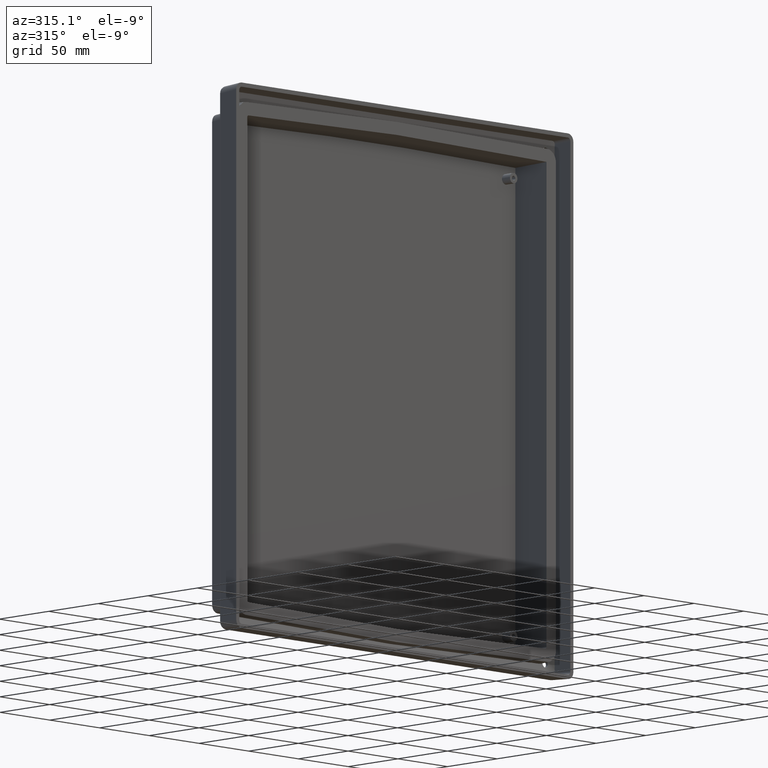
[diagram: clean part render]
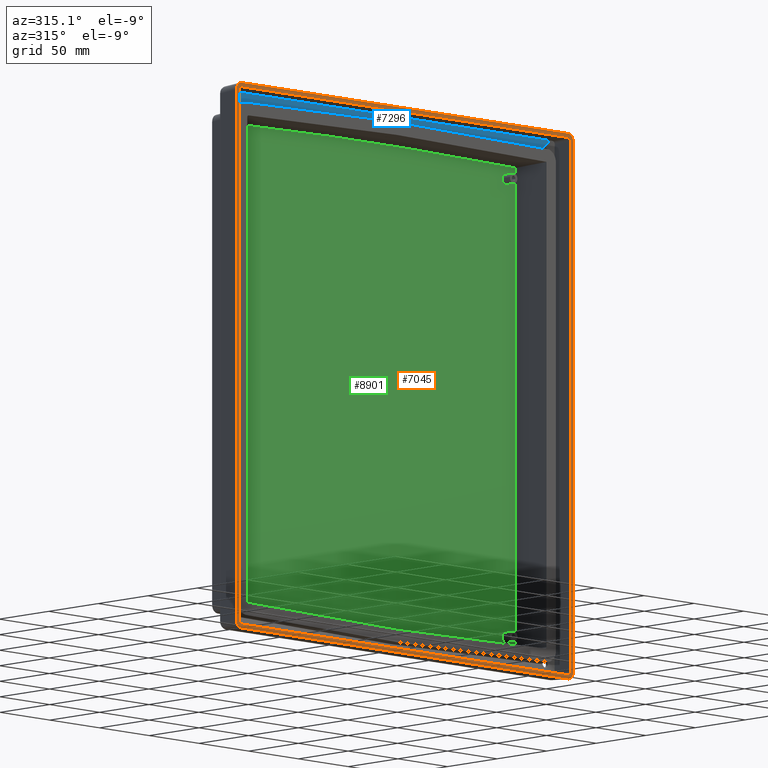
[diagram: same view with three faces highlighted in distinct colors, each labeled with its STEP entity id]
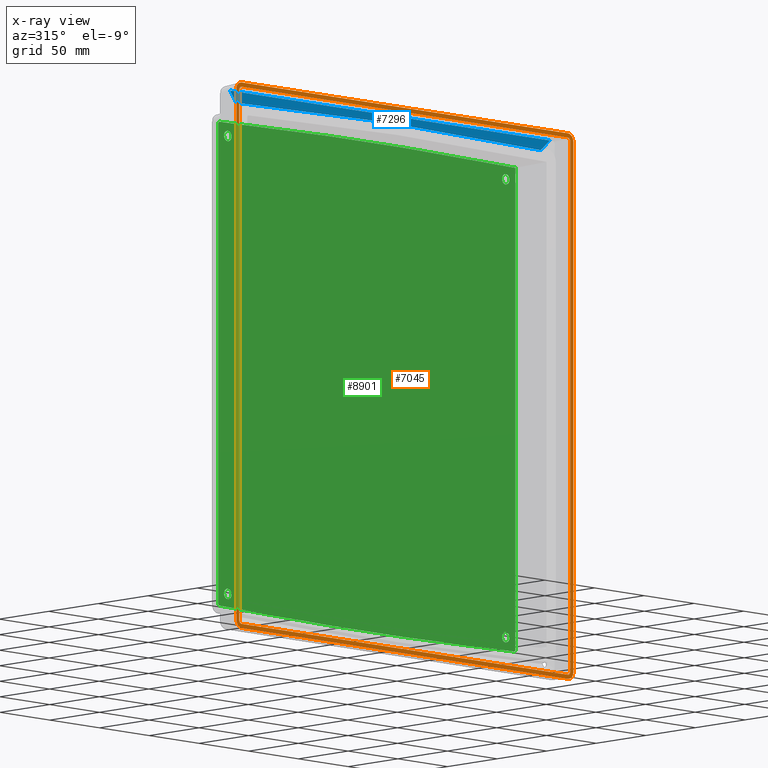
[diagram: x-ray of the same camera — body ghosted, the three highlighted faces saturated]
A machine part, auxiliary view with three faces highlighted in distinct colors.
The next image is the same camera in x-ray (body ghosted, the three faces saturated) — at least one of them is partly hidden behind the body in this view.
Their STEP definitions:

[orange] entity #7045 — the highlighted planar face has unit normal (0, -1, -0).
#7043 = EDGE_CURVE ( 'NONE', #7101, #7102, #10040, .T. ) ;
#7045 = ADVANCED_FACE ( 'NONE', ( #10018, #10017 ), #10016, .T. ) ;
#7046 = EDGE_LOOP ( 'NONE', ( #7047, #7051, #7054, #7057, #7116, #7119, #7122, #7125 ) ) ;
#7047 = ORIENTED_EDGE ( 'NONE', *, *, #7048, .F. ) ;
#7048 = EDGE_CURVE ( 'NONE', #7049, #7050, #10014, .T. ) ;
#7049 = VERTEX_POINT ( 'NONE', #10007 ) ;
#7050 = VERTEX_POINT ( 'NONE', #10056 ) ;
#7051 = ORIENTED_EDGE ( 'NONE', *, *, #7052, .F. ) ;
#7052 = EDGE_CURVE ( 'NONE', #7053, #7049, #10053, .T. ) ;
#7053 = VERTEX_POINT ( 'NONE', #10055 ) ;
#7054 = ORIENTED_EDGE ( 'NONE', *, *, #7055, .F. ) ;
#7055 = EDGE_CURVE ( 'NONE', #7056, #7053, #10054, .T. ) ;
#7056 = VERTEX_POINT ( 'NONE', #10045 ) ;
#7057 = ORIENTED_EDGE ( 'NONE', *, *, #7058, .F. ) ;
#7058 = EDGE_CURVE ( 'NONE', #7115, #7056, #10043, .T. ) ;
#7087 = ORIENTED_EDGE ( 'NONE', *, *, #7088, .T. ) ;
#7088 = EDGE_CURVE ( 'NONE', #7114, #7089, #10085, .T. ) ;
#7089 = VERTEX_POINT ( 'NONE', #10087 ) ;
#7090 = ORIENTED_EDGE ( 'NONE', *, *, #7091, .T. ) ;
#7091 = EDGE_CURVE ( 'NONE', #7089, #7092, #10086, .T. ) ;
#7092 = VERTEX_POINT ( 'NONE', #10124 ) ;
#7093 = ORIENTED_EDGE ( 'NONE', *, *, #7094, .T. ) ;
#7094 = EDGE_CURVE ( 'NONE', #7092, #7101, #10121, .T. ) ;
#7101 = VERTEX_POINT ( 'NONE', #10147 ) ;
#7102 = VERTEX_POINT ( 'NONE', #10146 ) ;
#7103 = ORIENTED_EDGE ( 'NONE', *, *, #7104, .T. ) ;
#7104 = EDGE_CURVE ( 'NONE', #7102, #7105, #10143, .T. ) ;
#7105 = VERTEX_POINT ( 'NONE', #10145 ) ;
#7106 = ORIENTED_EDGE ( 'NONE', *, *, #7107, .T. ) ;
#7107 = EDGE_CURVE ( 'NONE', #7105, #7108, #10144, .T. ) ;
#7108 = VERTEX_POINT ( 'NONE', #10135 ) ;
#7109 = ORIENTED_EDGE ( 'NONE', *, *, #7110, .T. ) ;
#7110 = EDGE_CURVE ( 'NONE', #7108, #7111, #10132, .T. ) ;
#7111 = VERTEX_POINT ( 'NONE', #10134 ) ;
#7112 = ORIENTED_EDGE ( 'NONE', *, *, #7113, .T. ) ;
#7113 = EDGE_CURVE ( 'NONE', #7111, #7114, #10133, .T. ) ;
#7114 = VERTEX_POINT ( 'NONE', #10164 ) ;
#7115 = VERTEX_POINT ( 'NONE', #10163 ) ;
#7116 = ORIENTED_EDGE ( 'NONE', *, *, #7117, .F. ) ;
#7117 = EDGE_CURVE ( 'NONE', #7118, #7115, #10162, .T. ) ;
#7118 = VERTEX_POINT ( 'NONE', #10158 ) ;
#7119 = ORIENTED_EDGE ( 'NONE', *, *, #7120, .F. ) ;
#7120 = EDGE_CURVE ( 'NONE', #7121, #7118, #10155, .T. ) ;
#7121 = VERTEX_POINT ( 'NONE', #10157 ) ;
#7122 = ORIENTED_EDGE ( 'NONE', *, *, #7123, .F. ) ;
#7123 = EDGE_CURVE ( 'NONE', #7124, #7121, #10156, .T. ) ;
#7124 = VERTEX_POINT ( 'NONE', #10190 ) ;
#7125 = ORIENTED_EDGE ( 'NONE', *, *, #7126, .F. ) ;
#7126 = EDGE_CURVE ( 'NONE', #7050, #7124, #10187, .T. ) ;
#7127 = EDGE_LOOP ( 'NONE', ( #7128, #7103, #7106, #7109, #7112, #7087, #7090, #7093 ) ) ;
#7128 = ORIENTED_EDGE ( 'NONE', *, *, #7043, .T. ) ;
#10007 = CARTESIAN_POINT ( 'NONE',  ( -166.4151451962704900, -7.999999999999996400, 191.1685713593841700 ) ) ;
#10008 = DIRECTION ( 'NONE',  ( -5.657187386625003200E-016, 0.0000000000000000000, -1.000000000000000000 ) ) ;
#10009 = VECTOR ( 'NONE', #10008, 1000.000000000000000 ) ;
#10010 = CARTESIAN_POINT ( 'NONE',  ( -166.4151451962705400, -7.999999999999996400, 196.2500000000002300 ) ) ;
#10011 = DIRECTION ( 'NONE',  ( 0.0000000000000000000, 0.0000000000000000000, -1.000000000000000000 ) ) ;
#10012 = DIRECTION ( 'NONE',  ( 0.0000000000000000000, -1.000000000000000000, -0.0000000000000000000 ) ) ;
#10013 = AXIS2_PLACEMENT_3D ( 'NONE', #10015, #10012, #10011 ) ;
#10014 = LINE ( 'NONE', #10010, #10009 ) ;
#10015 = CARTESIAN_POINT ( 'NONE',  ( 169.0000000000000300, -7.999999999999996400, 196.2500000000000300 ) ) ;
#10016 = PLANE ( 'NONE',  #10013 ) ;
#10017 = FACE_OUTER_BOUND ( 'NONE', #7127, .T. ) ;
#10018 = FACE_BOUND ( 'NONE', #7046, .T. ) ;
#10023 = DIRECTION ( 'NONE',  ( -5.657187386625003200E-016, -0.0000000000000000000, -1.000000000000000000 ) ) ;
#10024 = VECTOR ( 'NONE', #10023, 1000.000000000000000 ) ;
#10025 = CARTESIAN_POINT ( 'NONE',  ( -169.4192622342642700, -7.999999999999996400, 196.2500000000000300 ) ) ;
#10040 = LINE ( 'NONE', #10025, #10024 ) ;
#10041 = CARTESIAN_POINT ( 'NONE',  ( 166.4151451962706300, -7.999999999999996400, 192.6318588405286800 ) ) ;
#10042 = CARTESIAN_POINT ( 'NONE',  ( 166.4151451962706000, -7.999999999999996400, 191.1685713593841700 ) ) ;
#10043 =( BOUNDED_CURVE ( )  B_SPLINE_CURVE ( 3, ( #10042, #10041, #10084, #10083 ),
 .UNSPECIFIED., .F., .T. ) 
 B_SPLINE_CURVE_WITH_KNOTS ( ( 4, 4 ),
 ( 5.499156671652524900, 7.067213942706647600 ),
 .UNSPECIFIED. ) 
 CURVE ( )  GEOMETRIC_REPRESENTATION_ITEM ( )  RATIONAL_B_SPLINE_CURVE ( ( 1.000000000000000000, 0.8053830134673557500, 0.8053830134673557500, 1.000000000000000000 ) ) 
 REPRESENTATION_ITEM ( '' )  );
#10045 = CARTESIAN_POINT ( 'NONE',  ( 163.9185713593841700, -7.999999999999996400, 193.6651451962706000 ) ) ;
#10046 = DIRECTION ( 'NONE',  ( -1.000000000000000000, 0.0000000000000000000, 0.0000000000000000000 ) ) ;
#10047 = VECTOR ( 'NONE', #10046, 1000.000000000000000 ) ;
#10048 = CARTESIAN_POINT ( 'NONE',  ( 169.0000000000000300, -7.999999999999996400, 193.6651451962706000 ) ) ;
#10049 = CARTESIAN_POINT ( 'NONE',  ( -166.4151451962704900, -7.999999999999996400, 191.1685713593841700 ) ) ;
#10050 = CARTESIAN_POINT ( 'NONE',  ( -166.4151451962704900, -7.999999999999996400, 192.6318588405286500 ) ) ;
#10051 = CARTESIAN_POINT ( 'NONE',  ( -165.3818588405285400, -7.999999999999996400, 193.6651451962706000 ) ) ;
#10052 = CARTESIAN_POINT ( 'NONE',  ( -163.9185713593840300, -7.999999999999996400, 193.6651451962706000 ) ) ;
#10053 =( BOUNDED_CURVE ( )  B_SPLINE_CURVE ( 3, ( #10052, #10051, #10050, #10049 ),
 .UNSPECIFIED., .F., .T. ) 
 B_SPLINE_CURVE_WITH_KNOTS ( ( 4, 4 ),
 ( 5.499156671652524900, 7.067213942706636900 ),
 .UNSPECIFIED. ) 
 CURVE ( )  GEOMETRIC_REPRESENTATION_ITEM ( )  RATIONAL_B_SPLINE_CURVE ( ( 1.000000000000000000, 0.8053830134673580800, 0.8053830134673580800, 1.000000000000000000 ) ) 
 REPRESENTATION_ITEM ( '' )  );
#10054 = LINE ( 'NONE', #10048, #10047 ) ;
#10055 = CARTESIAN_POINT ( 'NONE',  ( -163.9185713593840300, -7.999999999999996400, 193.6651451962706000 ) ) ;
#10056 = CARTESIAN_POINT ( 'NONE',  ( -166.4151451962707100, -7.999999999999996400, -191.1685713593840900 ) ) ;
#10083 = CARTESIAN_POINT ( 'NONE',  ( 163.9185713593841700, -7.999999999999996400, 193.6651451962706000 ) ) ;
#10084 = CARTESIAN_POINT ( 'NONE',  ( 165.3818588405287100, -7.999999999999996400, 193.6651451962706300 ) ) ;
#10085 =( BOUNDED_CURVE ( )  B_SPLINE_CURVE ( 3, ( #10131, #10130, #10129, #10128 ),
 .UNSPECIFIED., .F., .T. ) 
 B_SPLINE_CURVE_WITH_KNOTS ( ( 4, 4 ),
 ( 5.499156671652531100, 7.067213942706646700 ),
 .UNSPECIFIED. ) 
 CURVE ( )  GEOMETRIC_REPRESENTATION_ITEM ( )  RATIONAL_B_SPLINE_CURVE ( ( 1.000000000000000000, 0.8053830134673574100, 0.8053830134673574100, 1.000000000000000000 ) ) 
 REPRESENTATION_ITEM ( '' )  );
#10086 = LINE ( 'NONE', #10127, #10126 ) ;
#10087 = CARTESIAN_POINT ( 'NONE',  ( 163.9267997931141800, -7.999999999999996400, 196.6692622342643800 ) ) ;
#10117 = CARTESIAN_POINT ( 'NONE',  ( -169.4192622342642700, -7.999999999999996400, 191.1767997931141800 ) ) ;
#10118 = CARTESIAN_POINT ( 'NONE',  ( -169.4192622342642700, -7.999999999999996400, 194.3960322516322200 ) ) ;
#10119 = CARTESIAN_POINT ( 'NONE',  ( -167.1460322516319400, -7.999999999999996400, 196.6692622342645200 ) ) ;
#10120 = CARTESIAN_POINT ( 'NONE',  ( -163.9267997931139900, -7.999999999999996400, 196.6692622342643800 ) ) ;
#10121 =( BOUNDED_CURVE ( )  B_SPLINE_CURVE ( 3, ( #10120, #10119, #10118, #10117 ),
 .UNSPECIFIED., .F., .T. ) 
 B_SPLINE_CURVE_WITH_KNOTS ( ( 4, 4 ),
 ( 5.499156671652510700, 7.067213942706642300 ),
 .UNSPECIFIED. ) 
 CURVE ( )  GEOMETRIC_REPRESENTATION_ITEM ( )  RATIONAL_B_SPLINE_CURVE ( ( 1.000000000000000000, 0.8053830134673536400, 0.8053830134673536400, 1.000000000000000000 ) ) 
 REPRESENTATION_ITEM ( '' )  );
#10124 = CARTESIAN_POINT ( 'NONE',  ( -163.9267997931139900, -7.999999999999996400, 196.6692622342643800 ) ) ;
#10125 = DIRECTION ( 'NONE',  ( -1.000000000000000000, -0.0000000000000000000, -0.0000000000000000000 ) ) ;
#10126 = VECTOR ( 'NONE', #10125, 1000.000000000000000 ) ;
#10127 = CARTESIAN_POINT ( 'NONE',  ( 169.0000000000000300, -7.999999999999996400, 196.6692622342643800 ) ) ;
#10128 = CARTESIAN_POINT ( 'NONE',  ( 163.9267997931141800, -7.999999999999996400, 196.6692622342643800 ) ) ;
#10129 = CARTESIAN_POINT ( 'NONE',  ( 167.1460322516321900, -7.999999999999998200, 196.6692622342644100 ) ) ;
#10130 = CARTESIAN_POINT ( 'NONE',  ( 169.4192622342644100, -7.999999999999998200, 194.3960322516321400 ) ) ;
#10131 = CARTESIAN_POINT ( 'NONE',  ( 169.4192622342643800, -7.999999999999996400, 191.1767997931142100 ) ) ;
#10132 =( BOUNDED_CURVE ( )  B_SPLINE_CURVE ( 3, ( #10171, #10170, #10169, #10168 ),
 .UNSPECIFIED., .F., .T. ) 
 B_SPLINE_CURVE_WITH_KNOTS ( ( 4, 4 ),
 ( 5.499156671652531100, 7.067213942706667100 ),
 .UNSPECIFIED. ) 
 CURVE ( )  GEOMETRIC_REPRESENTATION_ITEM ( )  RATIONAL_B_SPLINE_CURVE ( ( 1.000000000000000000, 0.8053830134673525300, 0.8053830134673525300, 1.000000000000000000 ) ) 
 REPRESENTATION_ITEM ( '' )  );
#10133 = LINE ( 'NONE', #10167, #10166 ) ;
#10134 = CARTESIAN_POINT ( 'NONE',  ( 169.4192622342644900, -7.999999999999996400, -191.1767997931139600 ) ) ;
#10135 = CARTESIAN_POINT ( 'NONE',  ( 163.9267997931143300, -7.999999999999996400, -196.6692622342642700 ) ) ;
#10136 = DIRECTION ( 'NONE',  ( 1.000000000000000000, -0.0000000000000000000, -0.0000000000000000000 ) ) ;
#10137 = VECTOR ( 'NONE', #10136, 1000.000000000000000 ) ;
#10138 = CARTESIAN_POINT ( 'NONE',  ( 169.0000000000001400, -7.999999999999996400, -196.6692622342642700 ) ) ;
#10139 = CARTESIAN_POINT ( 'NONE',  ( -163.9267997931142400, -7.999999999999996400, -196.6692622342642700 ) ) ;
#10140 = CARTESIAN_POINT ( 'NONE',  ( -167.1460322516323100, -7.999999999999996400, -196.6692622342644400 ) ) ;
#10141 = CARTESIAN_POINT ( 'NONE',  ( -169.4192622342646400, -7.999999999999996400, -194.3960322516320500 ) ) ;
#10142 = CARTESIAN_POINT ( 'NONE',  ( -169.4192622342644900, -7.999999999999996400, -191.1767997931140100 ) ) ;
#10143 =( BOUNDED_CURVE ( )  B_SPLINE_CURVE ( 3, ( #10142, #10141, #10140, #10139 ),
 .UNSPECIFIED., .F., .T. ) 
 B_SPLINE_CURVE_WITH_KNOTS ( ( 4, 4 ),
 ( 5.499156671652510700, 7.067213942706657400 ),
 .UNSPECIFIED. ) 
 CURVE ( )  GEOMETRIC_REPRESENTATION_ITEM ( )  RATIONAL_B_SPLINE_CURVE ( ( 1.000000000000000000, 0.8053830134673500800, 0.8053830134673500800, 1.000000000000000000 ) ) 
 REPRESENTATION_ITEM ( '' )  );
#10144 = LINE ( 'NONE', #10138, #10137 ) ;
#10145 = CARTESIAN_POINT ( 'NONE',  ( -163.9267997931142400, -7.999999999999996400, -196.6692622342642700 ) ) ;
#10146 = CARTESIAN_POINT ( 'NONE',  ( -169.4192622342644900, -7.999999999999996400, -191.1767997931140100 ) ) ;
#10147 = CARTESIAN_POINT ( 'NONE',  ( -169.4192622342642700, -7.999999999999996400, 191.1767997931141800 ) ) ;
#10151 = CARTESIAN_POINT ( 'NONE',  ( 166.4151451962707100, -7.999999999999996400, -191.1685713593840600 ) ) ;
#10152 = CARTESIAN_POINT ( 'NONE',  ( 166.4151451962707100, -7.999999999999996400, -192.6318588405285700 ) ) ;
#10153 = CARTESIAN_POINT ( 'NONE',  ( 165.3818588405288200, -7.999999999999996400, -193.6651451962705200 ) ) ;
#10154 = CARTESIAN_POINT ( 'NONE',  ( 163.9185713593842900, -7.999999999999996400, -193.6651451962704900 ) ) ;
#10155 =( BOUNDED_CURVE ( )  B_SPLINE_CURVE ( 3, ( #10154, #10153, #10152, #10151 ),
 .UNSPECIFIED., .F., .T. ) 
 B_SPLINE_CURVE_WITH_KNOTS ( ( 4, 4 ),
 ( 5.499156671652524900, 7.067213942706647600 ),
 .UNSPECIFIED. ) 
 CURVE ( )  GEOMETRIC_REPRESENTATION_ITEM ( )  RATIONAL_B_SPLINE_CURVE ( ( 1.000000000000000000, 0.8053830134673557500, 0.8053830134673557500, 1.000000000000000000 ) ) 
 REPRESENTATION_ITEM ( '' )  );
#10156 = LINE ( 'NONE', #10193, #10192 ) ;
#10157 = CARTESIAN_POINT ( 'NONE',  ( 163.9185713593842900, -7.999999999999996400, -193.6651451962704900 ) ) ;
#10158 = CARTESIAN_POINT ( 'NONE',  ( 166.4151451962707100, -7.999999999999996400, -191.1685713593840600 ) ) ;
#10159 = DIRECTION ( 'NONE',  ( -2.828593693312501600E-016, 0.0000000000000000000, 1.000000000000000000 ) ) ;
#10160 = VECTOR ( 'NONE', #10159, 1000.000000000000000 ) ;
#10161 = CARTESIAN_POINT ( 'NONE',  ( 166.4151451962706000, -7.999999999999996400, 196.2500000000000300 ) ) ;
#10162 = LINE ( 'NONE', #10161, #10160 ) ;
#10163 = CARTESIAN_POINT ( 'NONE',  ( 166.4151451962706000, -7.999999999999996400, 191.1685713593841700 ) ) ;
#10164 = CARTESIAN_POINT ( 'NONE',  ( 169.4192622342643800, -7.999999999999996400, 191.1767997931142100 ) ) ;
#10165 = DIRECTION ( 'NONE',  ( -2.828593693312501600E-016, -0.0000000000000000000, 1.000000000000000000 ) ) ;
#10166 = VECTOR ( 'NONE', #10165, 1000.000000000000000 ) ;
#10167 = CARTESIAN_POINT ( 'NONE',  ( 169.4192622342643800, -7.999999999999996400, 196.2500000000000300 ) ) ;
#10168 = CARTESIAN_POINT ( 'NONE',  ( 169.4192622342644900, -7.999999999999996400, -191.1767997931139600 ) ) ;
#10169 = CARTESIAN_POINT ( 'NONE',  ( 169.4192622342646100, -7.999999999999998200, -194.3960322516319100 ) ) ;
#10170 = CARTESIAN_POINT ( 'NONE',  ( 167.1460322516323100, -7.999999999999998200, -196.6692622342643200 ) ) ;
#10171 = CARTESIAN_POINT ( 'NONE',  ( 163.9267997931143300, -7.999999999999996400, -196.6692622342642700 ) ) ;
#10183 = CARTESIAN_POINT ( 'NONE',  ( -163.9185713593842900, -7.999999999999996400, -193.6651451962705200 ) ) ;
#10184 = CARTESIAN_POINT ( 'NONE',  ( -165.3818588405288200, -7.999999999999996400, -193.6651451962705400 ) ) ;
#10185 = CARTESIAN_POINT ( 'NONE',  ( -166.4151451962707100, -7.999999999999996400, -192.6318588405286200 ) ) ;
#10186 = CARTESIAN_POINT ( 'NONE',  ( -166.4151451962707100, -7.999999999999996400, -191.1685713593840900 ) ) ;
#10187 =( BOUNDED_CURVE ( )  B_SPLINE_CURVE ( 3, ( #10186, #10185, #10184, #10183 ),
 .UNSPECIFIED., .F., .T. ) 
 B_SPLINE_CURVE_WITH_KNOTS ( ( 4, 4 ),
 ( 5.499156671652524900, 7.067213942706647600 ),
 .UNSPECIFIED. ) 
 CURVE ( )  GEOMETRIC_REPRESENTATION_ITEM ( )  RATIONAL_B_SPLINE_CURVE ( ( 1.000000000000000000, 0.8053830134673557500, 0.8053830134673557500, 1.000000000000000000 ) ) 
 REPRESENTATION_ITEM ( '' )  );
#10190 = CARTESIAN_POINT ( 'NONE',  ( -163.9185713593842900, -7.999999999999996400, -193.6651451962705200 ) ) ;
#10191 = DIRECTION ( 'NONE',  ( 1.000000000000000000, 0.0000000000000000000, 0.0000000000000000000 ) ) ;
#10192 = VECTOR ( 'NONE', #10191, 1000.000000000000000 ) ;
#10193 = CARTESIAN_POINT ( 'NONE',  ( 169.0000000000000300, -7.999999999999996400, -193.6651451962704900 ) ) ;

[blue] entity #7296 — the highlighted planar face has unit normal (0, 0.9781, 0.2079).
#6106 = CARTESIAN_POINT ( 'NONE',  ( -151.5249040882958100, 8.662255550699338600, 185.1854448155325800 ) ) ;
#6107 = CARTESIAN_POINT ( 'NONE',  ( -152.0211775446947200, 8.664083250391254200, 185.1768461645309000 ) ) ;
#6108 = CARTESIAN_POINT ( 'NONE',  ( -152.5152104109859600, 8.674735957446291200, 185.1267291181723400 ) ) ;
#6109 = CARTESIAN_POINT ( 'NONE',  ( -153.0034819481764700, 8.694137755050617100, 185.0354508369849800 ) ) ;
#6110 = CARTESIAN_POINT ( 'NONE',  ( -153.0034819481764700, 8.694137755050617100, 185.0354508369849800 ) ) ;
#6111 =( BOUNDED_CURVE ( )  B_SPLINE_CURVE ( 3, ( #6109, #6108, #6107, #6106 ),
 .UNSPECIFIED., .F., .F. ) 
 B_SPLINE_CURVE_WITH_KNOTS ( ( 4, 4 ),
 ( 5.902226363794117200, 6.071114068320796700 ),
 .UNSPECIFIED. ) 
 CURVE ( )  GEOMETRIC_REPRESENTATION_ITEM ( )  RATIONAL_B_SPLINE_CURVE ( ( 1.000000000000000000, 0.9976244907081224200, 0.9976244907081224200, 1.000000000000000000 ) ) 
 REPRESENTATION_ITEM ( '' )  );
#6155 = CARTESIAN_POINT ( 'NONE',  ( -151.5249040882958100, 8.662255550699338600, 185.1854448155325800 ) ) ;
#7277 = ORIENTED_EDGE ( 'NONE', *, *, #7278, .F. ) ;
#7278 = EDGE_CURVE ( 'NONE', #7279, #7359, #10381, .T. ) ;
#7279 = VERTEX_POINT ( 'NONE', #10417 ) ;
#7280 = ORIENTED_EDGE ( 'NONE', *, *, #7281, .T. ) ;
#7281 = EDGE_CURVE ( 'NONE', #7279, #7282, #10416, .T. ) ;
#7282 = VERTEX_POINT ( 'NONE', #10412 ) ;
#7283 = ORIENTED_EDGE ( 'NONE', *, *, #7284, .F. ) ;
#7284 = EDGE_CURVE ( 'NONE', #9461, #7282, #10411, .T. ) ;
#7285 = ORIENTED_EDGE ( 'NONE', *, *, #9460, .T. ) ;
#7286 = ORIENTED_EDGE ( 'NONE', *, *, #7287, .T. ) ;
#7287 = EDGE_CURVE ( 'NONE', #9485, #7300, #10407, .T. ) ;
#7296 = ADVANCED_FACE ( 'NONE', ( #10447 ), #10441, .F. ) ;
#7297 = EDGE_LOOP ( 'NONE', ( #7298, #7302, #7277, #7280, #7283, #7285, #7286 ) ) ;
#7298 = ORIENTED_EDGE ( 'NONE', *, *, #7299, .T. ) ;
#7299 = EDGE_CURVE ( 'NONE', #7300, #7301, #10439, .T. ) ;
#7300 = VERTEX_POINT ( 'NONE', #10432 ) ;
#7301 = VERTEX_POINT ( 'NONE', #10431 ) ;
#7302 = ORIENTED_EDGE ( 'NONE', *, *, #7358, .T. ) ;
#7358 = EDGE_CURVE ( 'NONE', #7301, #7359, #10558, .T. ) ;
#7359 = VERTEX_POINT ( 'NONE', #10559 ) ;
#9460 = EDGE_CURVE ( 'NONE', #9461, #9485, #6111, .T. ) ;
#9461 = VERTEX_POINT ( 'NONE', #6110 ) ;
#9485 = VERTEX_POINT ( 'NONE', #6155 ) ;
#10381 = LINE ( 'NONE', #10420, #10419 ) ;
#10404 = DIRECTION ( 'NONE',  ( 0.9998431525074352700, -0.003682270325438163900, 0.01732371984429565600 ) ) ;
#10405 = VECTOR ( 'NONE', #10404, 1000.000000000000100 ) ;
#10406 = CARTESIAN_POINT ( 'NONE',  ( -150.6009744155006200, 8.658852858178622800, 185.2014532252188400 ) ) ;
#10407 = LINE ( 'NONE', #10406, #10405 ) ;
#10408 = DIRECTION ( 'NONE',  ( -0.6992527780868754700, -0.1486307662483552200, 0.6992527780868759100 ) ) ;
#10409 = VECTOR ( 'NONE', #10408, 1000.000000000000000 ) ;
#10410 = CARTESIAN_POINT ( 'NONE',  ( -165.6602350680762500, 6.003861829978432300, 197.6922039568847500 ) ) ;
#10411 = LINE ( 'NONE', #10410, #10409 ) ;
#10412 = CARTESIAN_POINT ( 'NONE',  ( -160.8456321735367600, 7.027237267048271900, 192.8776010623452600 ) ) ;
#10413 = DIRECTION ( 'NONE',  ( -1.000000000000000000, -0.0000000000000000000, -0.0000000000000000000 ) ) ;
#10414 = VECTOR ( 'NONE', #10413, 1000.000000000000000 ) ;
#10415 = CARTESIAN_POINT ( 'NONE',  ( -168.4759222071695000, 7.027237267048279000, 192.8776010623452600 ) ) ;
#10416 = LINE ( 'NONE', #10415, #10414 ) ;
#10417 = CARTESIAN_POINT ( 'NONE',  ( 160.8456321735368700, 7.027237267048275400, 192.8776010623452600 ) ) ;
#10418 = DIRECTION ( 'NONE',  ( -0.6992527780868755800, 0.1486307662483552200, -0.6992527780868758000 ) ) ;
#10419 = VECTOR ( 'NONE', #10418, 1000.000000000000000 ) ;
#10420 = CARTESIAN_POINT ( 'NONE',  ( 165.6602350680763600, 6.003861829978435900, 197.6922039568847500 ) ) ;
#10431 = CARTESIAN_POINT ( 'NONE',  ( 151.5249040882958700, 8.662255550699338600, 185.1854448155325500 ) ) ;
#10432 = CARTESIAN_POINT ( 'NONE',  ( -2.249719507907421700E-015, 8.104212365135746100, 187.8108315887243700 ) ) ;
#10433 = DIRECTION ( 'NONE',  ( 0.9998431525074352700, 0.003682270325438163900, -0.01732371984429565600 ) ) ;
#10434 = VECTOR ( 'NONE', #10433, 1000.000000000000100 ) ;
#10435 = CARTESIAN_POINT ( 'NONE',  ( 0.1391162243383096700, 8.104724709040269200, 187.8084212001647300 ) ) ;
#10436 = DIRECTION ( 'NONE',  ( 0.0000000000000000000, -0.2079116908177565700, 0.9781476007338061300 ) ) ;
#10437 = DIRECTION ( 'NONE',  ( 0.0000000000000000000, 0.9781476007338062400, 0.2079116908177565900 ) ) ;
#10438 = AXIS2_PLACEMENT_3D ( 'NONE', #10440, #10437, #10436 ) ;
#10439 = LINE ( 'NONE', #10435, #10434 ) ;
#10440 = CARTESIAN_POINT ( 'NONE',  ( -168.4759222071695000, 6.576483397431677400, 194.9982312893074500 ) ) ;
#10441 = PLANE ( 'NONE',  #10438 ) ;
#10447 = FACE_OUTER_BOUND ( 'NONE', #7297, .T. ) ;
#10554 = CARTESIAN_POINT ( 'NONE',  ( 153.0034819481765900, 8.694137755050620700, 185.0354508369849800 ) ) ;
#10555 = CARTESIAN_POINT ( 'NONE',  ( 152.5152104109860400, 8.674735957446282300, 185.1267291181723600 ) ) ;
#10556 = CARTESIAN_POINT ( 'NONE',  ( 152.0211775446947500, 8.664083250391245300, 185.1768461645309300 ) ) ;
#10557 = CARTESIAN_POINT ( 'NONE',  ( 151.5249040882958700, 8.662255550699338600, 185.1854448155325500 ) ) ;
#10558 =( BOUNDED_CURVE ( )  B_SPLINE_CURVE ( 3, ( #10557, #10556, #10555, #10554 ),
 .UNSPECIFIED., .F., .T. ) 
 B_SPLINE_CURVE_WITH_KNOTS ( ( 4, 4 ),
 ( 0.2120712388587964200, 0.3809589433854822000 ),
 .UNSPECIFIED. ) 
 CURVE ( )  GEOMETRIC_REPRESENTATION_ITEM ( )  RATIONAL_B_SPLINE_CURVE ( ( 1.000000000000000000, 0.9976244907081222000, 0.9976244907081222000, 1.000000000000000000 ) ) 
 REPRESENTATION_ITEM ( '' )  );
#10559 = CARTESIAN_POINT ( 'NONE',  ( 153.0034819481765900, 8.694137755050620700, 185.0354508369849800 ) ) ;

[green] entity #8901 — the highlighted planar face has unit normal (0, 1, 0).
#159 = CARTESIAN_POINT ( 'NONE',  ( 139.6999999999999300, 30.40000000000000200, 161.3499999999999900 ) ) ;
#164 = CARTESIAN_POINT ( 'NONE',  ( 139.6999999999999300, 30.40000000000000200, 168.8499999999999900 ) ) ;
#277 = DIRECTION ( 'NONE',  ( 0.0000000000000000000, 0.0000000000000000000, 1.000000000000000000 ) ) ;
#278 = DIRECTION ( 'NONE',  ( -0.0000000000000000000, -1.000000000000000000, -0.0000000000000000000 ) ) ;
#279 = CARTESIAN_POINT ( 'NONE',  ( 139.6999999999999300, 30.40000000000000200, 165.0999999999999900 ) ) ;
#280 = AXIS2_PLACEMENT_3D ( 'NONE', #279, #278, #277 ) ;
#281 = CIRCLE ( 'NONE', #280, 3.750000000000003600 ) ;
#4507 = DIRECTION ( 'NONE',  ( 1.000000000000000000, -0.0000000000000000000, -0.0000000000000000000 ) ) ;
#4508 = VECTOR ( 'NONE', #4507, 1000.000000000000000 ) ;
#4509 = CARTESIAN_POINT ( 'NONE',  ( -155.0000000000000000, 30.40000000000000200, -176.4020002988028200 ) ) ;
#4510 = LINE ( 'NONE', #4509, #4508 ) ;
#4511 = DIRECTION ( 'NONE',  ( 0.0000000000000000000, 0.0000000000000000000, 1.000000000000000000 ) ) ;
#4512 = DIRECTION ( 'NONE',  ( -0.0000000000000000000, -1.000000000000000000, -0.0000000000000000000 ) ) ;
#4513 = CARTESIAN_POINT ( 'NONE',  ( -139.6999999999998700, 30.40000000000000200, -165.1000000000000200 ) ) ;
#4514 = AXIS2_PLACEMENT_3D ( 'NONE', #4513, #4512, #4511 ) ;
#4515 = CIRCLE ( 'NONE', #4514, 3.750000000000003600 ) ;
#4516 = DIRECTION ( 'NONE',  ( 0.0000000000000000000, -0.0000000000000000000, 1.000000000000000000 ) ) ;
#4517 = DIRECTION ( 'NONE',  ( 0.0000000000000000000, 1.000000000000000000, 0.0000000000000000000 ) ) ;
#4533 = CARTESIAN_POINT ( 'NONE',  ( -155.0000000000000000, 30.40000000000000200, 181.5000000000000000 ) ) ;
#4534 = AXIS2_PLACEMENT_3D ( 'NONE', #4533, #4517, #4516 ) ;
#4535 = PLANE ( 'NONE',  #4534 ) ;
#4536 = FACE_BOUND ( 'NONE', #9251, .T. ) ;
#4537 = FACE_BOUND ( 'NONE', #9247, .T. ) ;
#4538 = FACE_OUTER_BOUND ( 'NONE', #9214, .T. ) ;
#4540 = FACE_BOUND ( 'NONE', #8906, .T. ) ;
#4541 = FACE_BOUND ( 'NONE', #8902, .T. ) ;
#4746 = CARTESIAN_POINT ( 'NONE',  ( -139.7000000000000500, 30.40000000000000200, 168.8499999999999100 ) ) ;
#4773 = CARTESIAN_POINT ( 'NONE',  ( 139.6999999999999300, 30.40000000000000200, -168.8499999999999900 ) ) ;
#4804 = CARTESIAN_POINT ( 'NONE',  ( -139.6999999999998700, 30.40000000000000200, -168.8500000000000200 ) ) ;
#4805 = CARTESIAN_POINT ( 'NONE',  ( -139.6999999999998700, 30.40000000000000200, -161.3500000000000200 ) ) ;
#4826 = CARTESIAN_POINT ( 'NONE',  ( 139.6999999999999300, 30.40000000000000200, -161.3499999999999900 ) ) ;
#4827 = DIRECTION ( 'NONE',  ( 0.0000000000000000000, 0.0000000000000000000, 1.000000000000000000 ) ) ;
#4828 = DIRECTION ( 'NONE',  ( -0.0000000000000000000, -1.000000000000000000, -0.0000000000000000000 ) ) ;
#4829 = CARTESIAN_POINT ( 'NONE',  ( 139.6999999999999300, 30.40000000000000200, -165.0999999999999900 ) ) ;
#4830 = AXIS2_PLACEMENT_3D ( 'NONE', #4829, #4828, #4827 ) ;
#4831 = CIRCLE ( 'NONE', #4830, 3.750000000000003600 ) ;
#4852 = DIRECTION ( 'NONE',  ( 0.0000000000000000000, 0.0000000000000000000, 1.000000000000000000 ) ) ;
#4853 = DIRECTION ( 'NONE',  ( -0.0000000000000000000, -1.000000000000000000, -0.0000000000000000000 ) ) ;
#4854 = CARTESIAN_POINT ( 'NONE',  ( -139.6999999999998700, 30.40000000000000200, -165.1000000000000200 ) ) ;
#4855 = AXIS2_PLACEMENT_3D ( 'NONE', #4854, #4853, #4852 ) ;
#4856 = CIRCLE ( 'NONE', #4855, 3.750000000000003600 ) ;
#5238 = DIRECTION ( 'NONE',  ( -1.000000000000000000, -0.0000000000000000000, -0.0000000000000000000 ) ) ;
#5239 = VECTOR ( 'NONE', #5238, 1000.000000000000000 ) ;
#5240 = CARTESIAN_POINT ( 'NONE',  ( -155.0000000000000000, 30.40000000000000200, 176.4020002988028200 ) ) ;
#5242 = LINE ( 'NONE', #5240, #5239 ) ;
#5467 = CARTESIAN_POINT ( 'NONE',  ( -37.96020609379383600, 30.39999999999999900, 176.4020002988028200 ) ) ;
#5512 = CARTESIAN_POINT ( 'NONE',  ( -147.9290481468308700, 30.40000000000000200, 174.4824870206861100 ) ) ;
#5513 = DIRECTION ( 'NONE',  ( -0.9998476951563911600, -0.0000000000000000000, -0.01745240643728388300 ) ) ;
#5514 = VECTOR ( 'NONE', #5513, 1000.000000000000100 ) ;
#5515 = CARTESIAN_POINT ( 'NONE',  ( -150.4450357931012800, 30.40000000000000200, 174.4385702929618600 ) ) ;
#5516 = LINE ( 'NONE', #5515, #5514 ) ;
#5555 = CARTESIAN_POINT ( 'NONE',  ( -149.4019717250052400, 30.40000000000000200, 172.9836290982529200 ) ) ;
#5556 = CARTESIAN_POINT ( 'NONE',  ( -149.4019717250052400, 30.40000000000000200, 173.8498788729834000 ) ) ;
#5557 = CARTESIAN_POINT ( 'NONE',  ( -148.7951659875248800, 30.40000000000000200, 174.4673688775413000 ) ) ;
#5558 = CARTESIAN_POINT ( 'NONE',  ( -147.9290481468308700, 30.40000000000000200, 174.4824870206861100 ) ) ;
#5559 =( BOUNDED_CURVE ( )  B_SPLINE_CURVE ( 3, ( #5558, #5557, #5556, #5555 ),
 .UNSPECIFIED., .F., .T. ) 
 B_SPLINE_CURVE_WITH_KNOTS ( ( 4, 4 ),
 ( 5.507112246722229500, 7.059258367636938500 ),
 .UNSPECIFIED. ) 
 CURVE ( )  GEOMETRIC_REPRESENTATION_ITEM ( )  RATIONAL_B_SPLINE_CURVE ( ( 1.000000000000000000, 0.8091131901567069100, 0.8091131901567069100, 1.000000000000000000 ) ) 
 REPRESENTATION_ITEM ( '' )  );
#5602 = CARTESIAN_POINT ( 'NONE',  ( -37.96020609379383600, 30.39999999999999900, -176.4020002988028200 ) ) ;
#5603 = DIRECTION ( 'NONE',  ( 0.9998476951563911600, -0.0000000000000000000, -0.01745240643728388300 ) ) ;
#5604 = VECTOR ( 'NONE', #5603, 1000.000000000000100 ) ;
#5605 = CARTESIAN_POINT ( 'NONE',  ( -150.4450357931012800, 30.40000000000000200, -174.4385702929618600 ) ) ;
#5606 = CARTESIAN_POINT ( 'NONE',  ( -147.9290481468308400, 30.40000000000000200, -174.4824870206861100 ) ) ;
#5607 = CARTESIAN_POINT ( 'NONE',  ( -148.7951659875249400, 30.40000000000000600, -174.4673688775413300 ) ) ;
#5608 = CARTESIAN_POINT ( 'NONE',  ( -149.4019717250053200, 30.40000000000000600, -173.8498788729833100 ) ) ;
#5609 = CARTESIAN_POINT ( 'NONE',  ( -149.4019717250052400, 30.40000000000000200, -172.9836290982527800 ) ) ;
#5610 =( BOUNDED_CURVE ( )  B_SPLINE_CURVE ( 3, ( #5609, #5608, #5607, #5606 ),
 .UNSPECIFIED., .F., .T. ) 
 B_SPLINE_CURVE_WITH_KNOTS ( ( 4, 4 ),
 ( 2.365519593132348500, 3.917665714047167600 ),
 .UNSPECIFIED. ) 
 CURVE ( )  GEOMETRIC_REPRESENTATION_ITEM ( )  RATIONAL_B_SPLINE_CURVE ( ( 1.000000000000000000, 0.8091131901566812600, 0.8091131901566812600, 1.000000000000000000 ) ) 
 REPRESENTATION_ITEM ( '' )  );
#5611 = LINE ( 'NONE', #5605, #5604 ) ;
#5612 = CARTESIAN_POINT ( 'NONE',  ( -147.9290481468308400, 30.40000000000000200, -174.4824870206861100 ) ) ;
#5613 = CARTESIAN_POINT ( 'NONE',  ( -149.4019717250052400, 30.40000000000000200, -172.9836290982527800 ) ) ;
#5614 = CARTESIAN_POINT ( 'NONE',  ( -149.4019717250052400, 30.40000000000000200, 172.9836290982529200 ) ) ;
#5615 = DIRECTION ( 'NONE',  ( 0.0000000000000000000, -0.0000000000000000000, -1.000000000000000000 ) ) ;
#5616 = VECTOR ( 'NONE', #5615, 1000.000000000000000 ) ;
#5617 = CARTESIAN_POINT ( 'NONE',  ( -149.4019717250052400, 30.40000000000000200, 175.5000000000000000 ) ) ;
#5618 = LINE ( 'NONE', #5617, #5616 ) ;
#5619 = DIRECTION ( 'NONE',  ( 0.0000000000000000000, 0.0000000000000000000, 1.000000000000000000 ) ) ;
#5620 = DIRECTION ( 'NONE',  ( -0.0000000000000000000, -1.000000000000000000, -0.0000000000000000000 ) ) ;
#5621 = CARTESIAN_POINT ( 'NONE',  ( 139.6999999999999300, 30.40000000000000200, 165.0999999999999900 ) ) ;
#5622 = AXIS2_PLACEMENT_3D ( 'NONE', #5621, #5620, #5619 ) ;
#5623 = CIRCLE ( 'NONE', #5622, 3.750000000000003600 ) ;
#5624 = CARTESIAN_POINT ( 'NONE',  ( 147.9290481468308900, 30.40000000000000200, -174.4824870206861100 ) ) ;
#5625 = DIRECTION ( 'NONE',  ( 0.9998476951563911600, -0.0000000000000000000, 0.01745240643728388300 ) ) ;
#5626 = VECTOR ( 'NONE', #5625, 1000.000000000000100 ) ;
#5627 = CARTESIAN_POINT ( 'NONE',  ( -0.01852732445308965700, 30.40000000000000200, -177.0649215565098000 ) ) ;
#5628 = LINE ( 'NONE', #5627, #5626 ) ;
#5629 = CARTESIAN_POINT ( 'NONE',  ( 37.96020609379390000, 30.40000000000000900, -176.4020002988028200 ) ) ;
#5645 = DIRECTION ( 'NONE',  ( 0.0000000000000000000, 0.0000000000000000000, 1.000000000000000000 ) ) ;
#5646 = DIRECTION ( 'NONE',  ( -0.0000000000000000000, -1.000000000000000000, -0.0000000000000000000 ) ) ;
#5647 = CARTESIAN_POINT ( 'NONE',  ( -139.7000000000000500, 30.40000000000000200, 165.0999999999999100 ) ) ;
#5648 = AXIS2_PLACEMENT_3D ( 'NONE', #5647, #5646, #5645 ) ;
#5649 = CIRCLE ( 'NONE', #5648, 3.750000000000003600 ) ;
#5650 = DIRECTION ( 'NONE',  ( 0.0000000000000000000, 0.0000000000000000000, 1.000000000000000000 ) ) ;
#5651 = DIRECTION ( 'NONE',  ( -0.0000000000000000000, -1.000000000000000000, -0.0000000000000000000 ) ) ;
#5652 = CARTESIAN_POINT ( 'NONE',  ( 139.6999999999999300, 30.40000000000000200, -165.0999999999999900 ) ) ;
#5653 = AXIS2_PLACEMENT_3D ( 'NONE', #5652, #5651, #5650 ) ;
#5654 = CIRCLE ( 'NONE', #5653, 3.750000000000003600 ) ;
#5655 = CARTESIAN_POINT ( 'NONE',  ( 37.96020609379390000, 30.40000000000000900, 176.4020002988028200 ) ) ;
#5656 = DIRECTION ( 'NONE',  ( -0.9998476951563911600, -0.0000000000000000000, 0.01745240643728388300 ) ) ;
#5657 = VECTOR ( 'NONE', #5656, 1000.000000000000100 ) ;
#5658 = CARTESIAN_POINT ( 'NONE',  ( -0.01852732445308965700, 30.40000000000000200, 177.0649215565098000 ) ) ;
#5659 = LINE ( 'NONE', #5658, #5657 ) ;
#5660 = CARTESIAN_POINT ( 'NONE',  ( 149.4019717250052400, 30.40000000000000600, 174.4567770439946900 ) ) ;
#5661 = DIRECTION ( 'NONE',  ( -0.0000000000000000000, -0.0000000000000000000, 1.000000000000000000 ) ) ;
#5662 = VECTOR ( 'NONE', #5661, 1000.000000000000000 ) ;
#5663 = CARTESIAN_POINT ( 'NONE',  ( 149.4019717250052400, 30.40000000000000200, -175.5000000000000000 ) ) ;
#5664 = CARTESIAN_POINT ( 'NONE',  ( 149.4019717250052400, 30.40000000000000200, -172.9836290982529200 ) ) ;
#5665 = CARTESIAN_POINT ( 'NONE',  ( 149.4019717250052700, 30.39999999999999900, -173.8498788729834000 ) ) ;
#5666 = CARTESIAN_POINT ( 'NONE',  ( 148.7951659875249400, 30.39999999999999900, -174.4673688775413600 ) ) ;
#5667 = CARTESIAN_POINT ( 'NONE',  ( 147.9290481468308900, 30.40000000000000200, -174.4824870206861100 ) ) ;
#5668 =( BOUNDED_CURVE ( )  B_SPLINE_CURVE ( 3, ( #5667, #5666, #5665, #5664 ),
 .UNSPECIFIED., .F., .T. ) 
 B_SPLINE_CURVE_WITH_KNOTS ( ( 4, 4 ),
 ( 2.365519593132455500, 3.917665714047144900 ),
 .UNSPECIFIED. ) 
 CURVE ( )  GEOMETRIC_REPRESENTATION_ITEM ( )  RATIONAL_B_SPLINE_CURVE ( ( 1.000000000000000000, 0.8091131901567116800, 0.8091131901567116800, 1.000000000000000000 ) ) 
 REPRESENTATION_ITEM ( '' )  );
#5669 = LINE ( 'NONE', #5663, #5662 ) ;
#5670 = CARTESIAN_POINT ( 'NONE',  ( 149.4019717250052400, 30.40000000000000200, -172.9836290982529200 ) ) ;
#6808 = DIRECTION ( 'NONE',  ( 0.0000000000000000000, 0.0000000000000000000, 1.000000000000000000 ) ) ;
#6809 = DIRECTION ( 'NONE',  ( -0.0000000000000000000, -1.000000000000000000, -0.0000000000000000000 ) ) ;
#6810 = CARTESIAN_POINT ( 'NONE',  ( -139.7000000000000500, 30.40000000000000200, 165.0999999999999100 ) ) ;
#6811 = AXIS2_PLACEMENT_3D ( 'NONE', #6810, #6809, #6808 ) ;
#6812 = CIRCLE ( 'NONE', #6811, 3.750000000000003600 ) ;
#7696 = VERTEX_POINT ( 'NONE', #159 ) ;
#7740 = VERTEX_POINT ( 'NONE', #164 ) ;
#7779 = EDGE_CURVE ( 'NONE', #7696, #7740, #281, .T. ) ;
#8901 = ADVANCED_FACE ( 'NONE', ( #4541, #4540, #4538, #4537, #4536 ), #4535, .F. ) ;
#8902 = EDGE_LOOP ( 'NONE', ( #8903, #8905 ) ) ;
#8903 = ORIENTED_EDGE ( 'NONE', *, *, #8904, .F. ) ;
#8904 = EDGE_CURVE ( 'NONE', #9030, #9031, #4515, .T. ) ;
#8905 = ORIENTED_EDGE ( 'NONE', *, *, #9037, .F. ) ;
#8906 = EDGE_LOOP ( 'NONE', ( #9211, #9213 ) ) ;
#8907 = EDGE_CURVE ( 'NONE', #9224, #9233, #4510, .T. ) ;
#8997 = VERTEX_POINT ( 'NONE', #4746 ) ;
#9017 = VERTEX_POINT ( 'NONE', #4773 ) ;
#9021 = EDGE_CURVE ( 'NONE', #9017, #9022, #4831, .T. ) ;
#9022 = VERTEX_POINT ( 'NONE', #4826 ) ;
#9030 = VERTEX_POINT ( 'NONE', #4805 ) ;
#9031 = VERTEX_POINT ( 'NONE', #4804 ) ;
#9037 = EDGE_CURVE ( 'NONE', #9031, #9030, #4856, .T. ) ;
#9187 = EDGE_CURVE ( 'NONE', #9245, #9188, #5242, .T. ) ;
#9188 = VERTEX_POINT ( 'NONE', #5467 ) ;
#9189 = ORIENTED_EDGE ( 'NONE', *, *, #9190, .T. ) ;
#9190 = EDGE_CURVE ( 'NONE', #9188, #9191, #5516, .T. ) ;
#9191 = VERTEX_POINT ( 'NONE', #5512 ) ;
#9192 = ORIENTED_EDGE ( 'NONE', *, *, #9193, .T. ) ;
#9193 = EDGE_CURVE ( 'NONE', #9191, #9217, #5559, .T. ) ;
#9211 = ORIENTED_EDGE ( 'NONE', *, *, #9212, .F. ) ;
#9212 = EDGE_CURVE ( 'NONE', #7740, #7696, #5623, .T. ) ;
#9213 = ORIENTED_EDGE ( 'NONE', *, *, #7779, .F. ) ;
#9214 = EDGE_LOOP ( 'NONE', ( #9215, #9219, #9222, #9225, #9234, #9237, #9240, #9243, #9246, #9189, #9192 ) ) ;
#9215 = ORIENTED_EDGE ( 'NONE', *, *, #9216, .T. ) ;
#9216 = EDGE_CURVE ( 'NONE', #9217, #9218, #5618, .T. ) ;
#9217 = VERTEX_POINT ( 'NONE', #5614 ) ;
#9218 = VERTEX_POINT ( 'NONE', #5613 ) ;
#9219 = ORIENTED_EDGE ( 'NONE', *, *, #9220, .T. ) ;
#9220 = EDGE_CURVE ( 'NONE', #9218, #9221, #5610, .T. ) ;
#9221 = VERTEX_POINT ( 'NONE', #5612 ) ;
#9222 = ORIENTED_EDGE ( 'NONE', *, *, #9223, .T. ) ;
#9223 = EDGE_CURVE ( 'NONE', #9221, #9224, #5611, .T. ) ;
#9224 = VERTEX_POINT ( 'NONE', #5602 ) ;
#9225 = ORIENTED_EDGE ( 'NONE', *, *, #8907, .T. ) ;
#9233 = VERTEX_POINT ( 'NONE', #5629 ) ;
#9234 = ORIENTED_EDGE ( 'NONE', *, *, #9235, .T. ) ;
#9235 = EDGE_CURVE ( 'NONE', #9233, #9236, #5628, .T. ) ;
#9236 = VERTEX_POINT ( 'NONE', #5624 ) ;
#9237 = ORIENTED_EDGE ( 'NONE', *, *, #9238, .T. ) ;
#9238 = EDGE_CURVE ( 'NONE', #9236, #9239, #5668, .T. ) ;
#9239 = VERTEX_POINT ( 'NONE', #5670 ) ;
#9240 = ORIENTED_EDGE ( 'NONE', *, *, #9241, .T. ) ;
#9241 = EDGE_CURVE ( 'NONE', #9239, #9242, #5669, .T. ) ;
#9242 = VERTEX_POINT ( 'NONE', #5660 ) ;
#9243 = ORIENTED_EDGE ( 'NONE', *, *, #9244, .T. ) ;
#9244 = EDGE_CURVE ( 'NONE', #9242, #9245, #5659, .T. ) ;
#9245 = VERTEX_POINT ( 'NONE', #5655 ) ;
#9246 = ORIENTED_EDGE ( 'NONE', *, *, #9187, .T. ) ;
#9247 = EDGE_LOOP ( 'NONE', ( #9248, #9250 ) ) ;
#9248 = ORIENTED_EDGE ( 'NONE', *, *, #9249, .F. ) ;
#9249 = EDGE_CURVE ( 'NONE', #9022, #9017, #5654, .T. ) ;
#9250 = ORIENTED_EDGE ( 'NONE', *, *, #9021, .F. ) ;
#9251 = EDGE_LOOP ( 'NONE', ( #9252, #9254 ) ) ;
#9252 = ORIENTED_EDGE ( 'NONE', *, *, #9253, .F. ) ;
#9253 = EDGE_CURVE ( 'NONE', #8997, #11353, #5649, .T. ) ;
#9254 = ORIENTED_EDGE ( 'NONE', *, *, #9854, .F. ) ;
#9854 = EDGE_CURVE ( 'NONE', #11353, #8997, #6812, .T. ) ;
#11191 = CARTESIAN_POINT ( 'NONE',  ( -139.7000000000000500, 30.40000000000000200, 161.3499999999999100 ) ) ;
#11353 = VERTEX_POINT ( 'NONE', #11191 ) ;